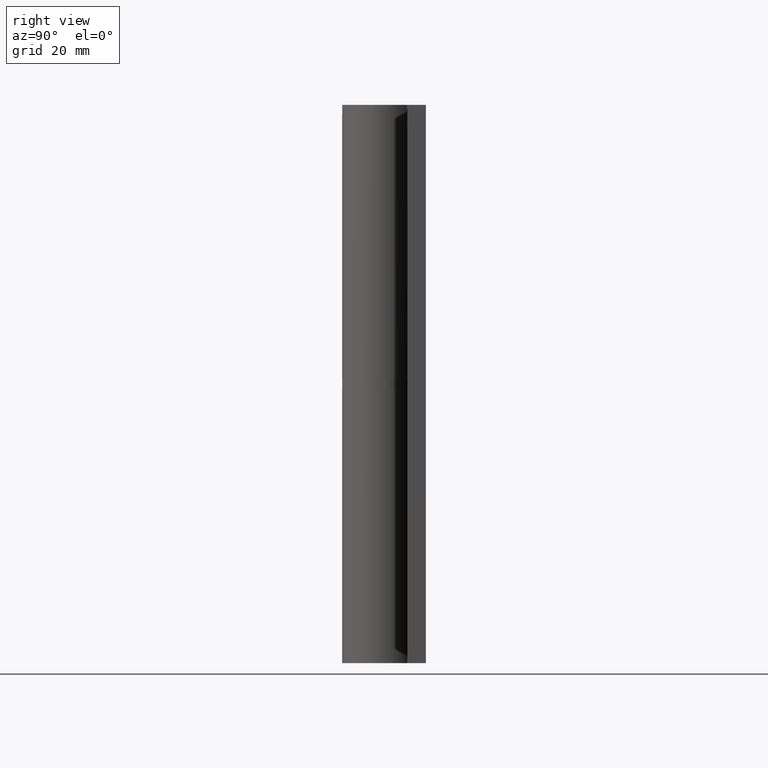
[diagram: clean part render]
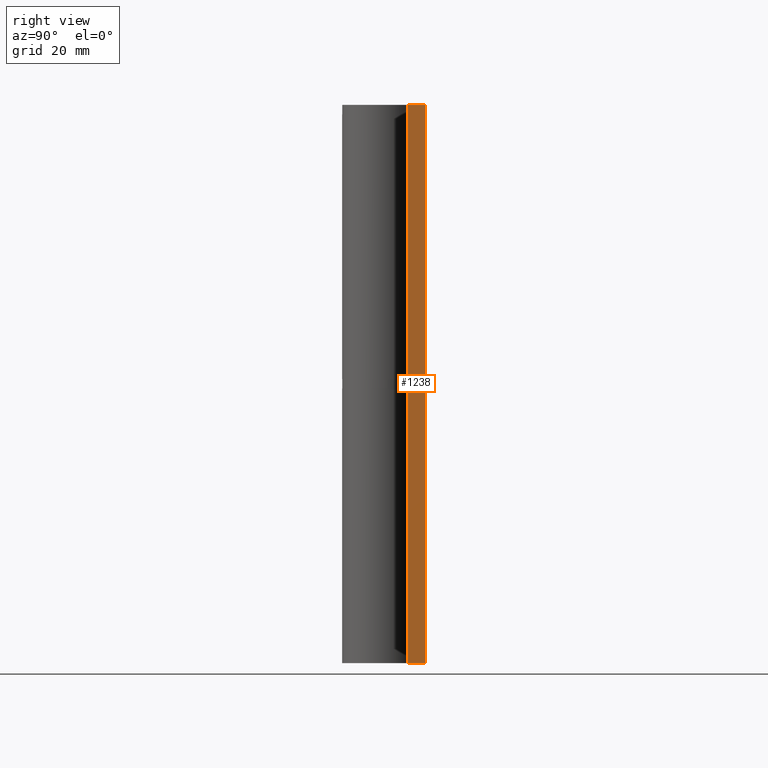
[diagram: same view with one face highlighted and labeled with its STEP entity id]
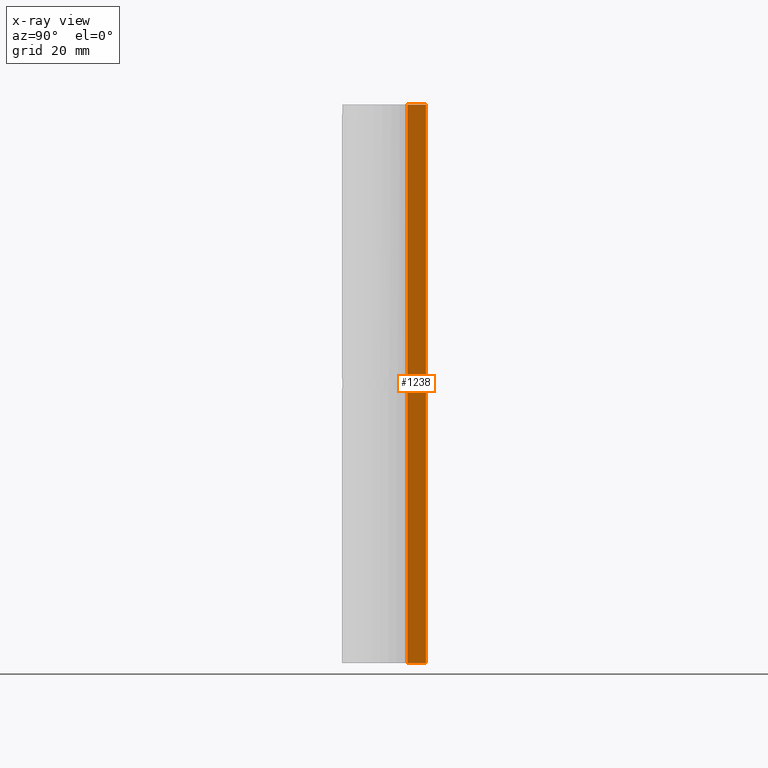
[diagram: x-ray of the same camera — body ghosted, the highlighted face saturated]
A machine part, right view. The second image highlights one B-rep face of the part: STEP entity #1238.
The next image is the same camera in x-ray: the body ghosted, the highlighted face saturated — about 0% of this face is hidden behind the body in this view.
In plain terms, the highlighted face is a freeform B-spline surface patch.
Its self-contained STEP definition (entity closure, byte-faithful):
#1101=CARTESIAN_POINT('',(50.0,5.0,120.000015000000000));
#1102=VERTEX_POINT('',#1101);
#1108=CARTESIAN_POINT('',(50.0,9.0,120.000015000000000));
#1109=VERTEX_POINT('',#1108);
#1110=CARTESIAN_POINT('',(50.0,9.0,120.000015000000000));
#1111=CARTESIAN_POINT('',(50.0,5.0,120.000015000000000));
#1112=QUASI_UNIFORM_CURVE('',1,(#1110,#1111),.UNSPECIFIED.,.F.,.U.);
#1113=EDGE_CURVE('',#1109,#1102,#1112,.T.);
#1129=CARTESIAN_POINT('',(50.0,9.0,0.0));
#1130=VERTEX_POINT('',#1129);
#1136=CARTESIAN_POINT('',(50.0,5.0,0.0));
#1137=VERTEX_POINT('',#1136);
#1138=CARTESIAN_POINT('',(50.0,9.0,0.0));
#1139=CARTESIAN_POINT('',(50.0,5.0,0.0));
#1140=QUASI_UNIFORM_CURVE('',1,(#1138,#1139),.UNSPECIFIED.,.F.,.U.);
#1141=EDGE_CURVE('',#1130,#1137,#1140,.T.);
#1214=CARTESIAN_POINT('',(50.0,5.0,0.0));
#1215=CARTESIAN_POINT('',(50.0,5.0,120.000015000000000));
#1216=QUASI_UNIFORM_CURVE('',1,(#1214,#1215),.UNSPECIFIED.,.F.,.U.);
#1217=EDGE_CURVE('',#1137,#1102,#1216,.T.);
#1223=CARTESIAN_POINT('',(50.0,4.800200007752776,-5.994000516666691));
#1224=CARTESIAN_POINT('',(50.0,4.800200007752776,125.994018735317890));
#1225=CARTESIAN_POINT('',(50.0,9.199800099535585,-5.994000516666691));
#1226=CARTESIAN_POINT('',(50.0,9.199800099535585,125.994018735317890));
#1227=B_SPLINE_SURFACE_WITH_KNOTS('',1,1,((#1223,#1225),(#1224,#1226)),.UNSPECIFIED.,.F.,.F.,.U.,(2,2),(2,2),(0.0,131.988019251984610),(0.0,4.399600091782808),.UNSPECIFIED.);
#1228=ORIENTED_EDGE('',*,*,#1113,.T.);
#1229=ORIENTED_EDGE('',*,*,#1217,.F.);
#1230=ORIENTED_EDGE('',*,*,#1141,.F.);
#1231=CARTESIAN_POINT('',(50.0,9.0,0.0));
#1232=CARTESIAN_POINT('',(50.0,9.0,120.000015000000000));
#1233=QUASI_UNIFORM_CURVE('',1,(#1231,#1232),.UNSPECIFIED.,.F.,.U.);
#1234=EDGE_CURVE('',#1130,#1109,#1233,.T.);
#1235=ORIENTED_EDGE('',*,*,#1234,.T.);
#1236=EDGE_LOOP('',(#1228,#1229,#1230,#1235));
#1237=FACE_OUTER_BOUND('',#1236,.T.);
#1238=ADVANCED_FACE('',(#1237),#1227,.F.);